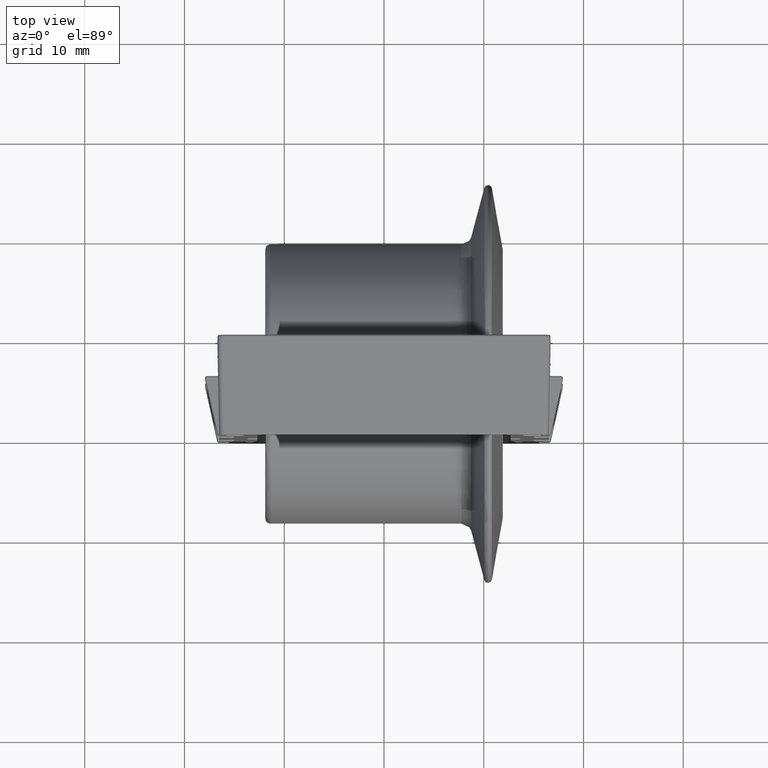
[diagram: clean part render]
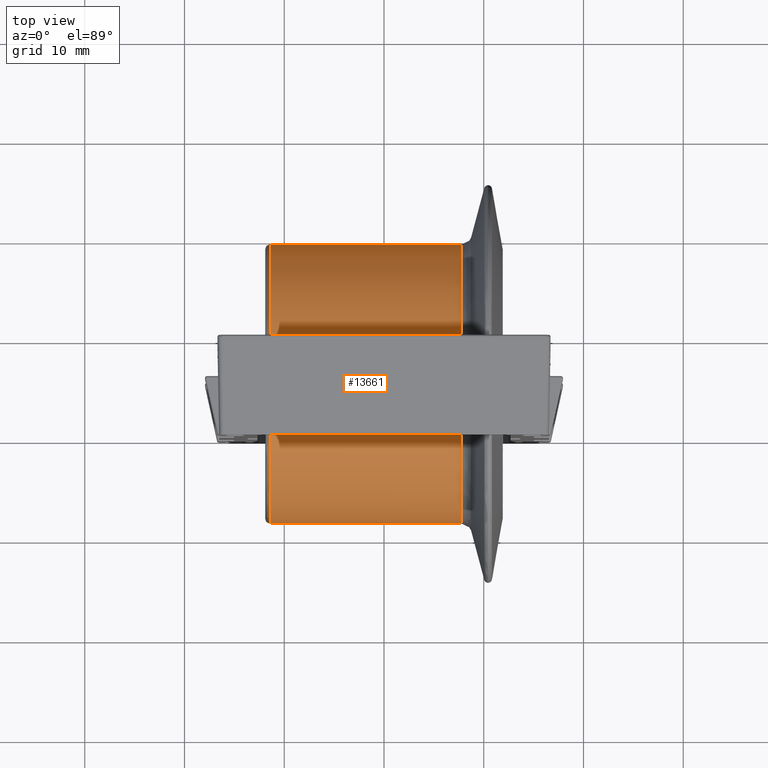
[diagram: same view with one face highlighted and labeled with its STEP entity id]
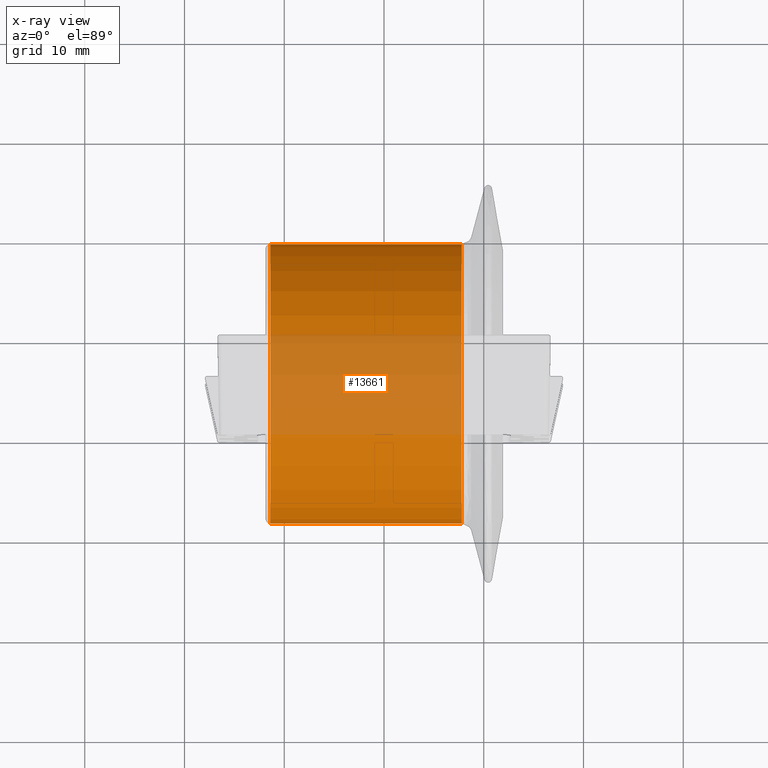
[diagram: x-ray of the same camera — body ghosted, the highlighted face saturated]
A machine part, top view. The second image highlights one B-rep face of the part: STEP entity #13661.
The next image is the same camera in x-ray: the body ghosted, the highlighted face saturated — about 36% of this face is hidden behind the body in this view.
In plain terms, the highlighted cylindrical surface (partial cylindrical patch) has radius 14 mm, axis along (1, 0, -0).
Its self-contained STEP definition (entity closure, byte-faithful):
#1 = DIRECTION ( 'NONE',  ( 1.000000000000000000, 1.473868700562970100E-017, -7.703719777548940000E-034 ) ) ;
#98 = CARTESIAN_POINT ( 'NONE',  ( -11.90000000000000000, -4.500000000000000900, -1.359533954965509900E-015 ) ) ;
#327 = ORIENTED_EDGE ( 'NONE', *, *, #9797, .T. ) ;
#796 = VERTEX_POINT ( 'NONE', #11707 ) ;
#1476 = EDGE_LOOP ( 'NONE', ( #26434, #3906, #4372, #11174, #327, #14217 ) ) ;
#1979 = DIRECTION ( 'NONE',  ( -1.000000000000000000, -1.473868700562970100E-017, 7.703719777548940000E-034 ) ) ;
#2302 = CARTESIAN_POINT ( 'NONE',  ( -11.40000000000000000, -4.500000000000000900, -1.359533954965509900E-015 ) ) ;
#2560 = FACE_OUTER_BOUND ( 'NONE', #1476, .T. ) ;
#3402 = AXIS2_PLACEMENT_3D ( 'NONE', #27208, #1, #18021 ) ;
#3744 = VERTEX_POINT ( 'NONE', #6267 ) ;
#3906 = ORIENTED_EDGE ( 'NONE', *, *, #7110, .T. ) ;
#4085 = LINE ( 'NONE', #13015, #8257 ) ;
#4372 = ORIENTED_EDGE ( 'NONE', *, *, #4400, .T. ) ;
#4400 = EDGE_CURVE ( 'NONE', #796, #12836, #16923, .T. ) ;
#4441 = CARTESIAN_POINT ( 'NONE',  ( -11.40000000000000000, 9.500000000000000000, -1.359533954965509900E-015 ) ) ;
#5158 = EDGE_CURVE ( 'NONE', #29342, #14009, #20837, .T. ) ;
#6017 = DIRECTION ( 'NONE',  ( 0.0000000000000000000, 1.000000000000000000, 0.0000000000000000000 ) ) ;
#6267 = CARTESIAN_POINT ( 'NONE',  ( 7.768988194111449800, -0.6350286652713275100, 13.45592793462144200 ) ) ;
#6650 = DIRECTION ( 'NONE',  ( 0.0000000000000000000, 1.000000000000000000, 0.0000000000000000000 ) ) ;
#7110 = EDGE_CURVE ( 'NONE', #14009, #796, #27767, .T. ) ;
#8161 = CYLINDRICAL_SURFACE ( 'NONE', #28398, 14.00000000000000000 ) ;
#8257 = VECTOR ( 'NONE', #17578, 1000.000000000000000 ) ;
#9797 = EDGE_CURVE ( 'NONE', #3744, #18328, #21321, .T. ) ;
#11174 = ORIENTED_EDGE ( 'NONE', *, *, #14200, .T. ) ;
#11707 = CARTESIAN_POINT ( 'NONE',  ( -11.40000000000000000, -18.50000000000000400, 3.549715638407844200E-016 ) ) ;
#12728 = CIRCLE ( 'NONE', #23678, 14.00000000000000000 ) ;
#12836 = VERTEX_POINT ( 'NONE', #15929 ) ;
#13015 = CARTESIAN_POINT ( 'NONE',  ( -11.90000000000000000, 9.500000000000000000, -1.359533954965509900E-015 ) ) ;
#13409 = DIRECTION ( 'NONE',  ( 0.0000000000000000000, 1.000000000000000000, 0.0000000000000000000 ) ) ;
#13661 = ADVANCED_FACE ( 'NONE', ( #2560 ), #8161, .T. ) ;
#14009 = VERTEX_POINT ( 'NONE', #22760 ) ;
#14200 = EDGE_CURVE ( 'NONE', #12836, #3744, #12728, .T. ) ;
#14217 = ORIENTED_EDGE ( 'NONE', *, *, #26856, .F. ) ;
#14451 = AXIS2_PLACEMENT_3D ( 'NONE', #28395, #14810, #6017 ) ;
#14810 = DIRECTION ( 'NONE',  ( -1.000000000000000000, -1.473868700562970100E-017, 7.703719777548940000E-034 ) ) ;
#15929 = CARTESIAN_POINT ( 'NONE',  ( 7.768988194111449800, -18.50000000000000400, 3.549715638407844200E-016 ) ) ;
#16923 = LINE ( 'NONE', #20681, #18006 ) ;
#17578 = DIRECTION ( 'NONE',  ( 1.000000000000000000, 1.473868700562970100E-017, -7.703719777548940000E-034 ) ) ;
#18006 = VECTOR ( 'NONE', #22960, 1000.000000000000000 ) ;
#18021 = DIRECTION ( 'NONE',  ( 0.0000000000000000000, 1.000000000000000000, 0.0000000000000000000 ) ) ;
#18328 = VERTEX_POINT ( 'NONE', #27933 ) ;
#20681 = CARTESIAN_POINT ( 'NONE',  ( -11.90000000000000000, -18.50000000000000400, 3.549715638407846200E-016 ) ) ;
#20837 = CIRCLE ( 'NONE', #3402, 14.00000000000000000 ) ;
#21321 = CIRCLE ( 'NONE', #14451, 14.00000000000000000 ) ;
#22760 = CARTESIAN_POINT ( 'NONE',  ( -11.40000000000000000, -0.6350286652713287300, 13.45592793462144200 ) ) ;
#22884 = DIRECTION ( 'NONE',  ( 1.000000000000000000, 1.473868700562970100E-017, -7.703719777548940000E-034 ) ) ;
#22960 = DIRECTION ( 'NONE',  ( 1.000000000000000000, 1.473868700562970100E-017, -7.703719777548940000E-034 ) ) ;
#23678 = AXIS2_PLACEMENT_3D ( 'NONE', #27050, #1979, #6650 ) ;
#24827 = DIRECTION ( 'NONE',  ( 1.000000000000000000, 1.473868700562970100E-017, -7.703719777548940000E-034 ) ) ;
#26434 = ORIENTED_EDGE ( 'NONE', *, *, #5158, .T. ) ;
#26856 = EDGE_CURVE ( 'NONE', #29342, #18328, #4085, .T. ) ;
#27050 = CARTESIAN_POINT ( 'NONE',  ( 7.768988194111449800, -4.500000000000000900, -1.359533954965509900E-015 ) ) ;
#27208 = CARTESIAN_POINT ( 'NONE',  ( -11.40000000000000000, -4.500000000000000900, -1.359533954965509900E-015 ) ) ;
#27391 = DIRECTION ( 'NONE',  ( 0.0000000000000000000, 1.000000000000000000, 0.0000000000000000000 ) ) ;
#27767 = CIRCLE ( 'NONE', #28188, 14.00000000000000000 ) ;
#27933 = CARTESIAN_POINT ( 'NONE',  ( 7.768988194111449800, 9.500000000000000000, -1.359533954965509900E-015 ) ) ;
#28188 = AXIS2_PLACEMENT_3D ( 'NONE', #2302, #24827, #13409 ) ;
#28395 = CARTESIAN_POINT ( 'NONE',  ( 7.768988194111449800, -4.500000000000000900, -1.359533954965509900E-015 ) ) ;
#28398 = AXIS2_PLACEMENT_3D ( 'NONE', #98, #22884, #27391 ) ;
#29342 = VERTEX_POINT ( 'NONE', #4441 ) ;